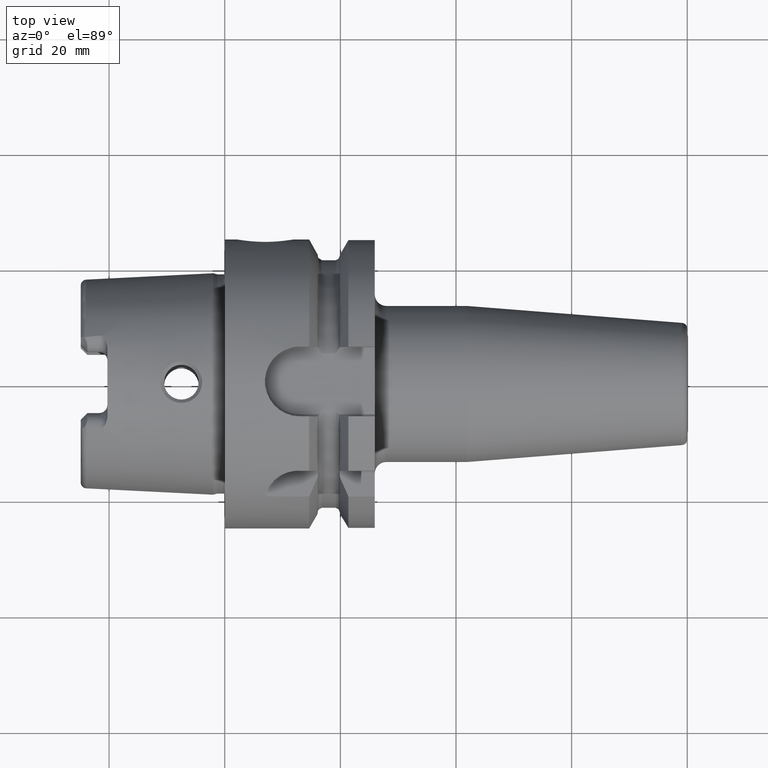
[diagram: clean part render]
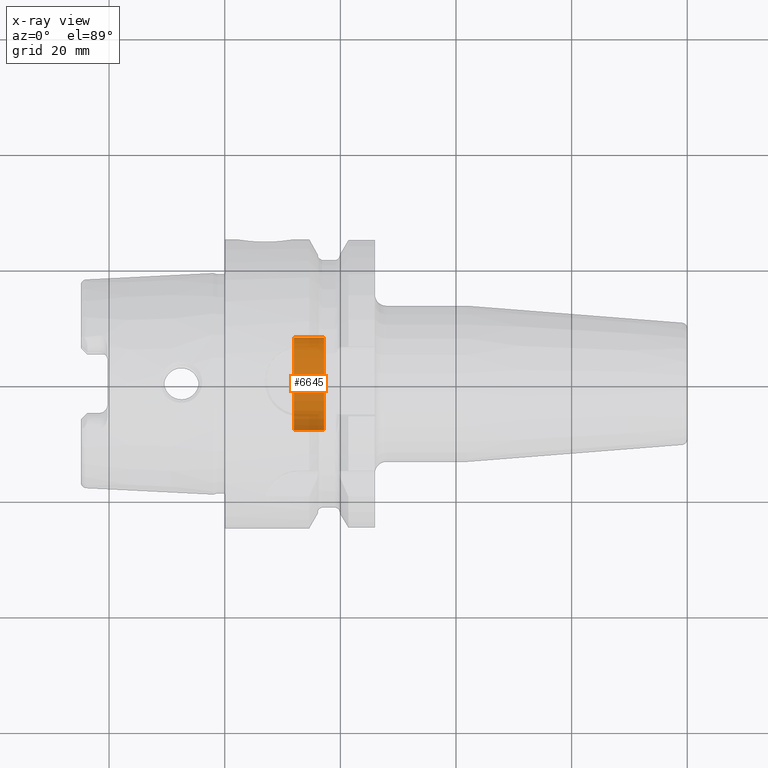
[diagram: x-ray — body ghosted, one internal face saturated and labeled with its STEP entity id]
A machine part, top view, then the same camera in x-ray: the body is ghosted and one INTERNAL B-rep face — a face not visible from any outside direction — is saturated and labeled: STEP entity #6645.
In plain terms, the highlighted cylindrical surface (partial cylindrical patch) has radius 8 mm, axis along (-1, 0, 0).
Its self-contained STEP definition (entity closure, byte-faithful):
#6594=CARTESIAN_POINT('',(1.72E1,0.E0,0.E0));
#6595=DIRECTION('',(-1.E0,0.E0,0.E0));
#6596=DIRECTION('',(0.E0,1.E0,0.E0));
#6597=AXIS2_PLACEMENT_3D('',#6594,#6595,#6596);
#6599=CARTESIAN_POINT('',(1.19625E1,0.E0,0.E0));
#6600=DIRECTION('',(1.E0,0.E0,0.E0));
#6601=DIRECTION('',(0.E0,-1.E0,0.E0));
#6602=AXIS2_PLACEMENT_3D('',#6599,#6600,#6601);
#6604=DIRECTION('',(1.E0,0.E0,0.E0));
#6605=VECTOR('',#6604,5.2375E0);
#6606=CARTESIAN_POINT('',(1.19625E1,8.E0,0.E0));
#6607=LINE('',#6606,#6605);
#6613=DIRECTION('',(1.E0,0.E0,0.E0));
#6614=VECTOR('',#6613,5.2375E0);
#6615=CARTESIAN_POINT('',(1.19625E1,-8.E0,0.E0));
#6616=LINE('',#6615,#6614);
#6622=CARTESIAN_POINT('',(1.19625E1,8.E0,0.E0));
#6623=CARTESIAN_POINT('',(1.72E1,8.E0,0.E0));
#6624=VERTEX_POINT('',#6622);
#6625=VERTEX_POINT('',#6623);
#6626=CARTESIAN_POINT('',(1.19625E1,-8.E0,0.E0));
#6627=CARTESIAN_POINT('',(1.72E1,-8.E0,0.E0));
#6628=VERTEX_POINT('',#6626);
#6629=VERTEX_POINT('',#6627);
#6630=CARTESIAN_POINT('',(2.329132554985E1,0.E0,0.E0));
#6631=DIRECTION('',(-1.E0,0.E0,0.E0));
#6632=DIRECTION('',(0.E0,1.E0,0.E0));
#6633=AXIS2_PLACEMENT_3D('',#6630,#6631,#6632);
#6634=CYLINDRICAL_SURFACE('',#6633,8.E0);
#6636=ORIENTED_EDGE('',*,*,#6635,.T.);
#6638=ORIENTED_EDGE('',*,*,#6637,.T.);
#6640=ORIENTED_EDGE('',*,*,#6639,.F.);
#6642=ORIENTED_EDGE('',*,*,#6641,.T.);
#6643=EDGE_LOOP('',(#6636,#6638,#6640,#6642));
#6644=FACE_OUTER_BOUND('',#6643,.F.);
#6645=ADVANCED_FACE('',(#6644),#6634,.F.);
#6598=CIRCLE('',#6597,8.E0);
#6603=CIRCLE('',#6602,8.E0);
#6635=EDGE_CURVE('',#6624,#6625,#6607,.T.);
#6637=EDGE_CURVE('',#6625,#6629,#6598,.T.);
#6639=EDGE_CURVE('',#6628,#6629,#6616,.T.);
#6641=EDGE_CURVE('',#6628,#6624,#6603,.T.);